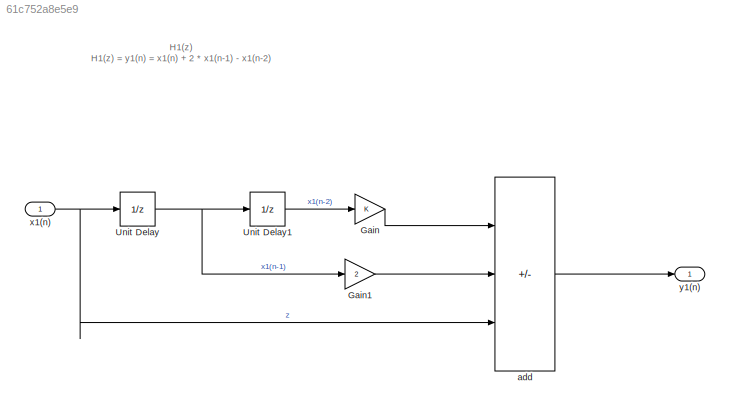
MODEL slx_61c752a8e5e9
KIND model
CONFIG AbsTol = auto
CONFIG EnableMultiTasking = off
CONFIG FixedStep = auto
CONFIG MaxStep = auto
CONFIG MinStep = auto
CONFIG RelTol = 1e-3
CONFIG SampleTimeConstraint = Unconstrained
CONFIG SolverName = VariableStepAuto
CONFIG StartTime = 0.0
CONFIG StopTime = 10.0
BLOCK [Gain] Gain
BLOCK [Gain] Gain1
  Gain = 2
BLOCK [UnitDelay] Unit Delay
  HasFrameUpgradeWarning = on
  SampleTime = -1
BLOCK [UnitDelay] Unit Delay1
  HasFrameUpgradeWarning = on
  SampleTime = -1
BLOCK [Sum] add
  IconShape = rectangular
  Inputs = -++
  Ports = [3, 1]
BLOCK [Inport] x1(n)
  OutDataTypeStr = double
  PortDimensions = 1
  SampleTime = 0
  SamplingMode = Sample based
  SignalType = real
BLOCK [Outport] y1(n)
  OutDataTypeStr = double
  PortDimensions = 1
  SampleTime = 0
  SamplingMode = Sample based
  SignalType = real
ANNOTATION (root): H1(z) H1(z) = y1(n) = x1(n) + 2 * x1(n-1) - x1(n-2)
LINE Gain1:1 -> add:2
LINE Gain:1 -> add:1
LINE Unit Delay1:1 -> Gain:1
NET Unit Delay:1 -> Gain1:1, Unit Delay1:1
LINE add:1 -> y1(n):1
NET x1(n):1 -> Unit Delay:1, add:3
note: NET lines group one-source signal fan-out (src -> all destinations, sorted); 1:1 wires keep LINE
